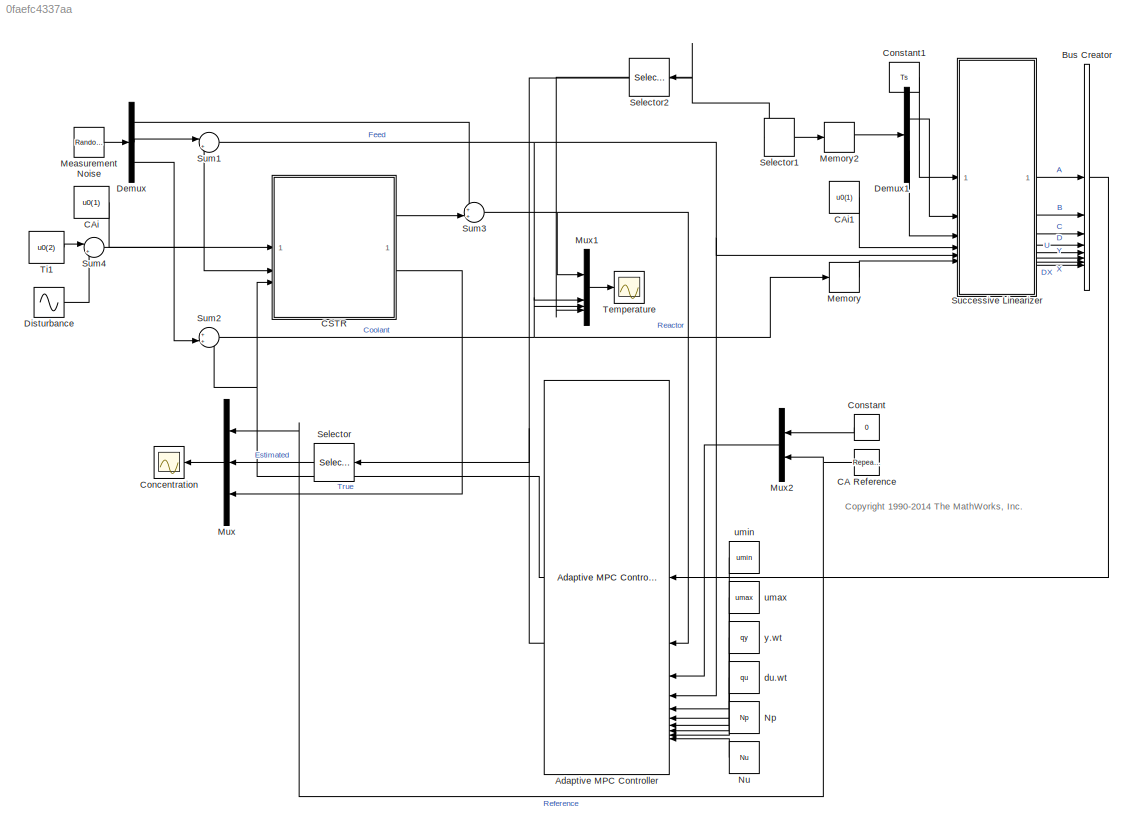
MODEL mdl_0faefc4337aa
KIND model
CONFIG AbsTol = auto
CONFIG EnableMultiTasking = on
CONFIG FixedStep = auto
CONFIG MaxStep = 0.5*Ts
CONFIG MinStep = auto
CONFIG RelTol = 1e-3
CONFIG SampleTimeConstraint = Unconstrained
CONFIG SolverName = ode45
CONFIG StartTime = 0
CONFIG StopTime = 48
BLOCK [Reference] Adaptive MPC Controller  REF=mpclib/Adaptive MPC Controller  (lib defined in mdl_ae329e0e0455)
  SCDEnableBlockLinearizationSpecification = on
  SourceBlock = mpclib/Adaptive MPC Controller
  SourceType = Adaptive MPC
BLOCK [BusCreator] Bus Creator
  DisplayOption = bar
  InheritFromInputs = on
  Inputs = 8
BLOCK [Reference] CA Reference  REF=simulink/Sources/Repeating
Sequence
Interpolated
  SourceBlock = simulink/Sources/Repeating\nSequence\nInterpolated
  SourceType = Repeating Sequence Interpolated
BLOCK [Constant] CAi
  Value = u0(1)
BLOCK [Constant] CAi1
  Value = u0(1)
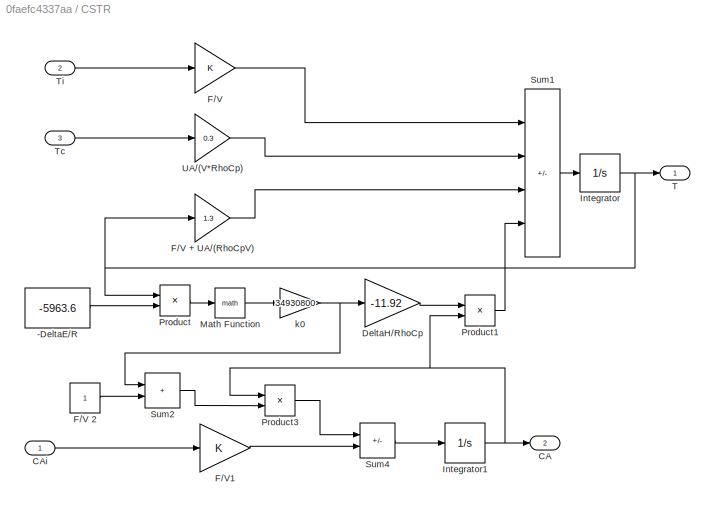
BLOCK [SubSystem] CSTR
BLOCK [Constant] CSTR/-DeltaE//R
  Value = -5963.6
BLOCK [Outport] CSTR/CA
  Port = 2
BLOCK [Inport] CSTR/CAi
BLOCK [Gain] CSTR/DeltaH//RhoCp
  Gain = -11.92
  OutDataTypeStr = Inherit: Same as input
  ParamDataTypeStr = Inherit: Same as input
  SaturateOnIntegerOverflow = on
BLOCK [Gain] CSTR/F//V
  OutDataTypeStr = Inherit: Same as input
  ParamDataTypeStr = Inherit: Same as input
  SaturateOnIntegerOverflow = on
BLOCK [Gain] CSTR/F//V + UA//(RhoCpV)
  Gain = 1.3
  OutDataTypeStr = Inherit: Same as input
  ParamDataTypeStr = Inherit: Same as input
  SaturateOnIntegerOverflow = on
BLOCK [Constant] CSTR/F//V 2
BLOCK [Gain] CSTR/F//V1
  OutDataTypeStr = Inherit: Same as input
  ParamDataTypeStr = Inherit: Same as input
  SaturateOnIntegerOverflow = on
BLOCK [Integrator] CSTR/Integrator
  InitialCondition = 311.2639
  LimitOutput = on
  LowerSaturationLimit = 0
BLOCK [Integrator] CSTR/Integrator1
  InitialCondition = 8.5698
  LimitOutput = on
  LowerSaturationLimit = 0
BLOCK [Math] CSTR/Math Function
  SignedPower = on
BLOCK [Product] CSTR/Product
  InputSameDT = on
  Inputs = /*
  OutDataTypeStr = Inherit: Same as first input
  RndMeth = Zero
  SaturateOnIntegerOverflow = on
BLOCK [Product] CSTR/Product1
  InputSameDT = on
  OutDataTypeStr = Inherit: Same as first input
  RndMeth = Zero
  SaturateOnIntegerOverflow = on
BLOCK [Product] CSTR/Product3
  InputSameDT = on
  OutDataTypeStr = Inherit: Same as first input
  RndMeth = Zero
  SaturateOnIntegerOverflow = on
BLOCK [Sum] CSTR/Sum1
  IconShape = rectangular
  InputSameDT = on
  Inputs = ++--
  OutDataTypeStr = Inherit: Same as first input
  SaturateOnIntegerOverflow = on
BLOCK [Sum] CSTR/Sum2
  IconShape = rectangular
  InputSameDT = on
  OutDataTypeStr = Inherit: Same as first input
  SaturateOnIntegerOverflow = on
BLOCK [Sum] CSTR/Sum4
  IconShape = rectangular
  InputSameDT = on
  Inputs = -+
  OutDataTypeStr = Inherit: Same as first input
  SaturateOnIntegerOverflow = on
BLOCK [Outport] CSTR/T
BLOCK [Inport] CSTR/Tc
  Port = 3
BLOCK [Inport] CSTR/Ti
  Port = 2
BLOCK [Gain] CSTR/UA//(V*RhoCp)
  Gain = 0.3
  OutDataTypeStr = Inherit: Same as input
  ParamDataTypeStr = Inherit: Same as input
  SaturateOnIntegerOverflow = on
BLOCK [Gain] CSTR/k0
  Gain = 34930800
  OutDataTypeStr = Inherit: Same as input
  ParamDataTypeStr = Inherit: Same as input
  SaturateOnIntegerOverflow = on
BLOCK [Scope] Concentration
  Floating = off
  NumInputPorts = 1
  ScopeSpecificationString = Simulink.scopes.TimeScopeBlockCfg('CurrentConfiguration', extmgr.ConfigurationSet(extmgr.Configuration('Core','General UI',true),extmgr.Configuration('Core','Source UI',true),extmgr.Configuration('Sources','WiredSimulink',true,'DataLogging',true,'DataLoggingVariableName','Csave','DataLoggingSaveFormat','StructureWithTime','SampleTime','Ts','DataLoggingDecimation','1','DataLoggingDecimateData',true...<+1727ch>
BLOCK [Constant] Constant
  Value = 0
BLOCK [Constant] Constant1
  Value = Ts
BLOCK [Demux] Demux
  Outputs = 3
BLOCK [Demux] Demux1
  Outputs = 2
BLOCK [Sin] Disturbance
  Amplitude = 2
  Frequency = 0.05
  SampleTime = 0
BLOCK [RandomNumber] Measurement Noise
  Mean = [0 0 0]
  SampleTime = Ts/5
  Seed = 98325
  Variance = 0.001*[1 1 1]
BLOCK [Memory] Memory
  InitialCondition = u0(3)
BLOCK [Memory] Memory2
  InitialCondition = x0
BLOCK [Mux] Mux
  DisplayOption = bar
  Inputs = 3
BLOCK [Mux] Mux1
  DisplayOption = bar
BLOCK [Mux] Mux2
  DisplayOption = bar
  Inputs = 2
BLOCK [Constant] Np
  NameLocation = top
  Value = Np
BLOCK [Constant] Nu
  NameLocation = top
  Value = Nu
BLOCK [Selector] Selector
  IndexOptions = Index vector (dialog)
  Indices = [2]
  InputPortWidth = 3
  OutputSizes = 1
BLOCK [Selector] Selector1
  IndexOptions = Index vector (dialog)
  Indices = 1:2
  InputPortWidth = 3
  OutputSizes = 1
BLOCK [Selector] Selector2
  IndexOptions = Index vector (dialog)
  Indices = 1
  InputPortWidth = 3
  NameLocation = top
  OutputSizes = 1
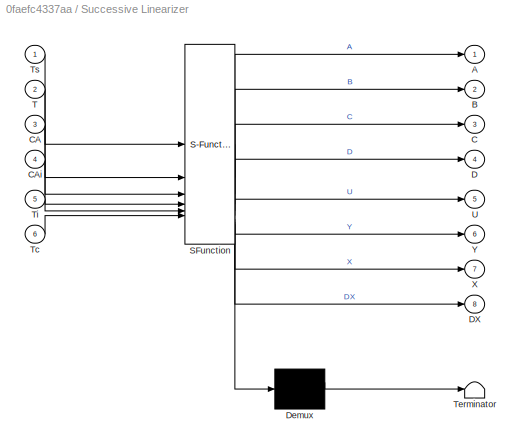
BLOCK [SubSystem] Successive Linearizer
  ErrorFcn = Stateflow.Translate.translate
  PermitHierarchicalResolution = ExplicitOnly
  SFBlockType = MATLAB Function
  SystemSampleTime = Ts
  TreatAsAtomicUnit = on
BLOCK [Demux] Successive Linearizer/ Demux 
  Outputs = 1
BLOCK [S-Function] Successive Linearizer/ SFunction 
  EnableBusSupport = on
  FunctionName = sf_sfun
  PortCounts = [6 9]
  SFcnIsStateOwnerBlock = off
  SFunctionDeploymentMode = off
  Tag = Stateflow S-Function 2
BLOCK [Terminator] Successive Linearizer/ Terminator 
BLOCK [Outport] Successive Linearizer/A
BLOCK [Outport] Successive Linearizer/B
  Port = 2
BLOCK [Outport] Successive Linearizer/C
  Port = 3
BLOCK [Inport] Successive Linearizer/CA
  Port = 3
BLOCK [Inport] Successive Linearizer/CAi
  Port = 4
BLOCK [Outport] Successive Linearizer/D
  Port = 4
BLOCK [Outport] Successive Linearizer/DX
  Port = 8
BLOCK [Inport] Successive Linearizer/T
  Port = 2
BLOCK [Inport] Successive Linearizer/Tc
  Port = 6
BLOCK [Inport] Successive Linearizer/Ti
  Port = 5
BLOCK [Inport] Successive Linearizer/Ts
BLOCK [Outport] Successive Linearizer/U
  Port = 5
BLOCK [Outport] Successive Linearizer/X
  Port = 7
BLOCK [Outport] Successive Linearizer/Y
  Port = 6
BLOCK [Sum] Sum1
  Inputs = |++
  SampleTime = Ts/5
BLOCK [Sum] Sum2
  Inputs = ++|
  SampleTime = Ts/5
BLOCK [Sum] Sum3
  Inputs = ++|
  SampleTime = Ts/5
BLOCK [Sum] Sum4
  Inputs = |++
  SampleTime = Ts/5
BLOCK [Scope] Temperature
  Floating = off
  NumInputPorts = 1
  ScopeSpecificationString = Simulink.scopes.TimeScopeBlockCfg('CurrentConfiguration', extmgr.ConfigurationSet(extmgr.Configuration('Core','General UI',true),extmgr.Configuration('Core','Source UI',true),extmgr.Configuration('Sources','WiredSimulink',true,'DataLogging',true,'DataLoggingVariableName','Tsave','DataLoggingSaveFormat','StructureWithTime','SampleTime','Ts','DataLoggingDecimation','1','DataLoggingDecimateData',true...<+1750ch>
BLOCK [Constant] Ti1
  Value = u0(2)
BLOCK [Constant] du.wt
  NameLocation = top
  Value = qu
BLOCK [Constant] umax
  NameLocation = top
  Value = umax
BLOCK [Constant] umin
  NameLocation = top
  Value = umin
BLOCK [Constant] y.wt
  NameLocation = top
  Value = qy
ANNOTATION (root): <copyright redacted>
NET Adaptive MPC Controller:1 -> CSTR:3, Sum2:1
NET Adaptive MPC Controller:2 -> Selector1:1, Selector2:1, Selector:1
LINE Bus Creator:1 -> Adaptive MPC Controller:1
NET CA Reference:1 -> Mux2:2, Mux:1
LINE CAi1:1 -> Successive Linearizer:4
LINE CAi:1 -> CSTR:1
LINE CSTR/-DeltaE//R:1 -> CSTR/Product:2
LINE CSTR/CAi:1 -> CSTR/F//V1:1
LINE CSTR/DeltaH//RhoCp:1 -> CSTR/Product1:1
LINE CSTR/F//V + UA//(RhoCpV):1 -> CSTR/Sum1:3
LINE CSTR/F//V 2:1 -> CSTR/Sum2:2
LINE CSTR/F//V1:1 -> CSTR/Sum4:2
LINE CSTR/F//V:1 -> CSTR/Sum1:1
NET CSTR/Integrator1:1 -> CSTR/CA:1, CSTR/Product1:2, CSTR/Product3:1
NET CSTR/Integrator:1 -> CSTR/F//V + UA//(RhoCpV):1, CSTR/Product:1, CSTR/T:1
LINE CSTR/Math Function:1 -> CSTR/k0:1
LINE CSTR/Product1:1 -> CSTR/Sum1:4
LINE CSTR/Product3:1 -> CSTR/Sum4:1
LINE CSTR/Product:1 -> CSTR/Math Function:1
LINE CSTR/Sum1:1 -> CSTR/Integrator:1
LINE CSTR/Sum2:1 -> CSTR/Product3:2
LINE CSTR/Sum4:1 -> CSTR/Integrator1:1
LINE CSTR/Tc:1 -> CSTR/UA//(V*RhoCp):1
LINE CSTR/Ti:1 -> CSTR/F//V:1
LINE CSTR/UA//(V*RhoCp):1 -> CSTR/Sum1:2
NET CSTR/k0:1 -> CSTR/DeltaH//RhoCp:1, CSTR/Sum2:1
LINE CSTR:1 -> Sum3:2
LINE CSTR:2 -> Mux:3
LINE Constant1:1 -> Successive Linearizer:1
LINE Constant:1 -> Mux2:1
LINE Demux1:1 -> Successive Linearizer:2
LINE Demux1:2 -> Successive Linearizer:3
LINE Demux:1 -> Sum3:1
LINE Demux:2 -> Sum1:1
LINE Demux:3 -> Sum2:2
LINE Disturbance:1 -> Sum4:2
LINE Measurement Noise:1 -> Demux:1
LINE Memory2:1 -> Demux1:1
LINE Memory:1 -> Successive Linearizer:6
LINE Mux1:1 -> Temperature:1
LINE Mux2:1 -> Adaptive MPC Controller:3
LINE Mux:1 -> Concentration:1
LINE Np:1 -> Adaptive MPC Controller:9
LINE Nu:1 -> Adaptive MPC Controller:10
LINE Selector1:1 -> Memory2:1
LINE Selector2:1 -> Mux1:4
LINE Selector:1 -> Mux:2
LINE Successive Linearizer:1 -> Bus Creator:1
LINE Successive Linearizer:2 -> Bus Creator:2
LINE Successive Linearizer:3 -> Bus Creator:3
LINE Successive Linearizer:4 -> Bus Creator:4
LINE Successive Linearizer:5 -> Bus Creator:5
LINE Successive Linearizer:6 -> Bus Creator:6
LINE Successive Linearizer:7 -> Bus Creator:7
LINE Successive Linearizer:8 -> Bus Creator:8
NET Sum1:1 -> Adaptive MPC Controller:4, Mux1:2, Successive Linearizer:5
NET Sum2:1 -> Memory:1, Mux1:3
NET Sum3:1 -> Adaptive MPC Controller:2, Mux1:1
NET Sum4:1 -> CSTR:2, Sum1:2
LINE Ti1:1 -> Sum4:1
LINE du.wt:1 -> Adaptive MPC Controller:8
LINE umax:1 -> Adaptive MPC Controller:6
LINE umin:1 -> Adaptive MPC Controller:5
LINE y.wt:1 -> Adaptive MPC Controller:7
note: NET lines group one-source signal fan-out (src -> all destinations, sorted); 1:1 wires keep LINE
CHART Successive Linearizer states=1 transitions=1
  STATE_LABEL 'eML_blk_kernel()'
  STATE_LABEL 'SCRIPT:\nfunction [A, B, C, D, U, Y, X, DX] = fcn(Ts, T, CA, CAi, Ti, Tc)\n%#codegen\n\n% Define constant outputs\nC = eye(2);\nD = zeros(2,2);\n% Nominal U are obtained from measurements\nU = [Ti; Tc];\n% Nominal X and Y are obtained from estimated MPC states\nY = [T; CA];\nX = [T; CA];\n% Analytical linearization of mechanistic CSTR model (continuous time)\n[A, Bo] = getContinuous(T, CA, CAi, Ti, Tc);\n% Conv...<+1191ch>'
CHART  states=0 transitions=0
